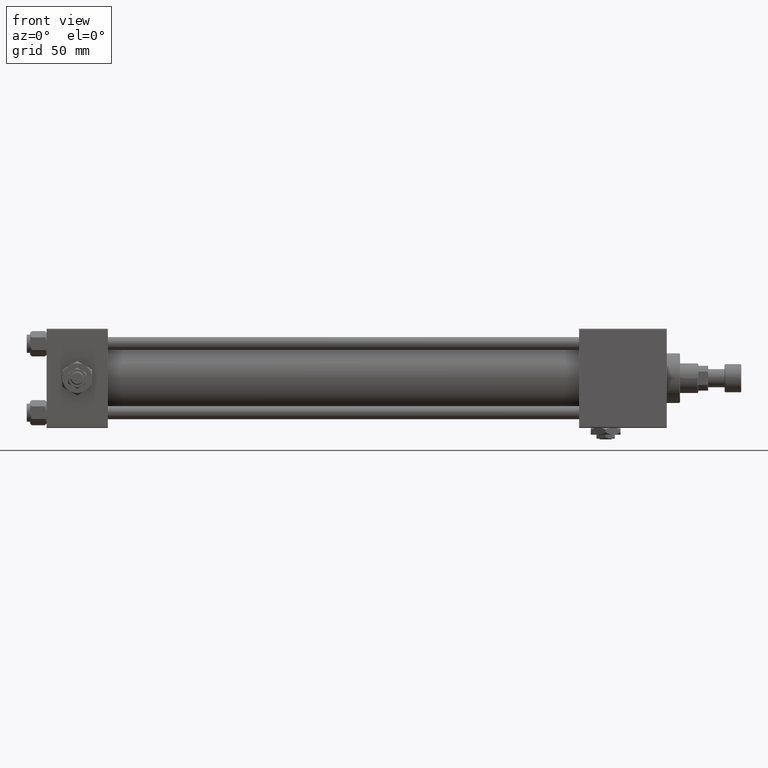
[diagram: clean part render]
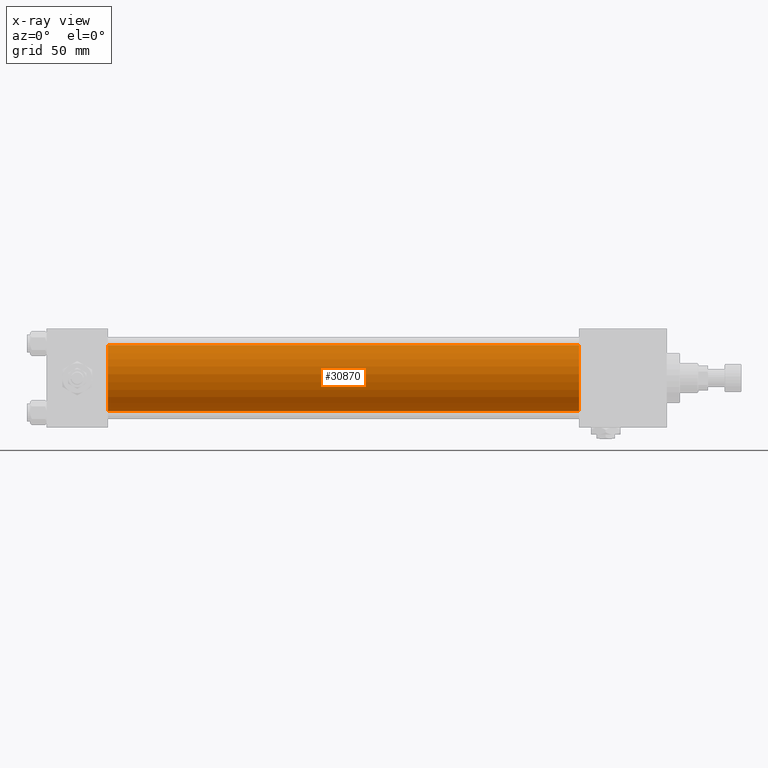
[diagram: x-ray — body ghosted, one internal face saturated and labeled with its STEP entity id]
A machine part, front view, then the same camera in x-ray: the body is ghosted and one INTERNAL B-rep face — a face not visible from any outside direction — is saturated and labeled: STEP entity #30870.
In plain terms, the highlighted cylindrical surface (edge-blend (fillet) strip) has radius 20 mm, axis along (-1, -0, -0).
Its self-contained STEP definition (entity closure, byte-faithful):
#1792 = EDGE_CURVE ( 'NONE', #43836, #17924, #7107, .T. ) ;
#2679 = ORIENTED_EDGE ( 'NONE', *, *, #1792, .F. ) ;
#4516 = ORIENTED_EDGE ( 'NONE', *, *, #32682, .T. ) ;
#7107 = LINE ( 'NONE', #35017, #20098 ) ;
#7155 = DIRECTION ( 'NONE',  ( 0.000000000000000000, 0.000000000000000000, -1.000000000000000000 ) ) ;
#9615 = CARTESIAN_POINT ( 'NONE',  ( 321.9999999999999432, -2.602085213965210642E-15, 0.000000000000000000 ) ) ;
#10818 = DIRECTION ( 'NONE',  ( -1.000000000000000000, -0.000000000000000000, -0.000000000000000000 ) ) ;
#17924 = VERTEX_POINT ( 'NONE', #20846 ) ;
#18110 = VERTEX_POINT ( 'NONE', #27169 ) ;
#18936 = DIRECTION ( 'NONE',  ( 1.000000000000000000, 0.000000000000000000, 0.000000000000000000 ) ) ;
#20098 = VECTOR ( 'NONE', #10818, 1000.000000000000000 ) ;
#20846 = CARTESIAN_POINT ( 'NONE',  ( 37.00000000000000000, -2.602085213965210642E-15, 20.00000000000000000 ) ) ;
#21616 = DIRECTION ( 'NONE',  ( 0.000000000000000000, 0.000000000000000000, 1.000000000000000000 ) ) ;
#21650 = CIRCLE ( 'NONE', #26733, 20.00000000000000000 ) ;
#23305 = EDGE_LOOP ( 'NONE', ( #4516, #25016, #36610, #2679 ) ) ;
#23893 = AXIS2_PLACEMENT_3D ( 'NONE', #9615, #46860, #21616 ) ;
#25016 = ORIENTED_EDGE ( 'NONE', *, *, #30714, .T. ) ;
#26345 = CYLINDRICAL_SURFACE ( 'NONE', #23893, 20.00000000000000000 ) ;
#26733 = AXIS2_PLACEMENT_3D ( 'NONE', #47685, #18936, #39679 ) ;
#27169 = CARTESIAN_POINT ( 'NONE',  ( 321.9999999999999432, -1.527916156705042519E-16, -20.00000000000000000 ) ) ;
#28121 = AXIS2_PLACEMENT_3D ( 'NONE', #35069, #34792, #7155 ) ;
#30690 = CIRCLE ( 'NONE', #28121, 20.00000000000000000 ) ;
#30714 = EDGE_CURVE ( 'NONE', #18110, #44366, #45302, .T. ) ;
#30870 = ADVANCED_FACE ( 'NONE', ( #46079 ), #26345, .F. ) ;
#32682 = EDGE_CURVE ( 'NONE', #43836, #18110, #30690, .T. ) ;
#34792 = DIRECTION ( 'NONE',  ( 1.000000000000000000, 0.000000000000000000, 0.000000000000000000 ) ) ;
#35017 = CARTESIAN_POINT ( 'NONE',  ( 321.9999999999999432, -2.602085213965210642E-15, 20.00000000000000000 ) ) ;
#35069 = CARTESIAN_POINT ( 'NONE',  ( 321.9999999999999432, -2.602085213965210642E-15, 0.000000000000000000 ) ) ;
#36610 = ORIENTED_EDGE ( 'NONE', *, *, #43804, .F. ) ;
#36785 = CARTESIAN_POINT ( 'NONE',  ( 321.9999999999999432, -1.527916156705042519E-16, -20.00000000000000000 ) ) ;
#39679 = DIRECTION ( 'NONE',  ( 0.000000000000000000, 0.000000000000000000, -1.000000000000000000 ) ) ;
#41298 = DIRECTION ( 'NONE',  ( -1.000000000000000000, -0.000000000000000000, -0.000000000000000000 ) ) ;
#43804 = EDGE_CURVE ( 'NONE', #17924, #44366, #21650, .T. ) ;
#43836 = VERTEX_POINT ( 'NONE', #51664 ) ;
#44366 = VERTEX_POINT ( 'NONE', #46101 ) ;
#45302 = LINE ( 'NONE', #36785, #48510 ) ;
#46079 = FACE_OUTER_BOUND ( 'NONE', #23305, .T. ) ;
#46101 = CARTESIAN_POINT ( 'NONE',  ( 37.00000000000000000, -1.527916156705042519E-16, -20.00000000000000000 ) ) ;
#46860 = DIRECTION ( 'NONE',  ( -1.000000000000000000, -0.000000000000000000, -0.000000000000000000 ) ) ;
#47685 = CARTESIAN_POINT ( 'NONE',  ( 37.00000000000000000, -2.602085213965210642E-15, 0.000000000000000000 ) ) ;
#48510 = VECTOR ( 'NONE', #41298, 1000.000000000000000 ) ;
#51664 = CARTESIAN_POINT ( 'NONE',  ( 321.9999999999999432, -2.602085213965210642E-15, 20.00000000000000000 ) ) ;